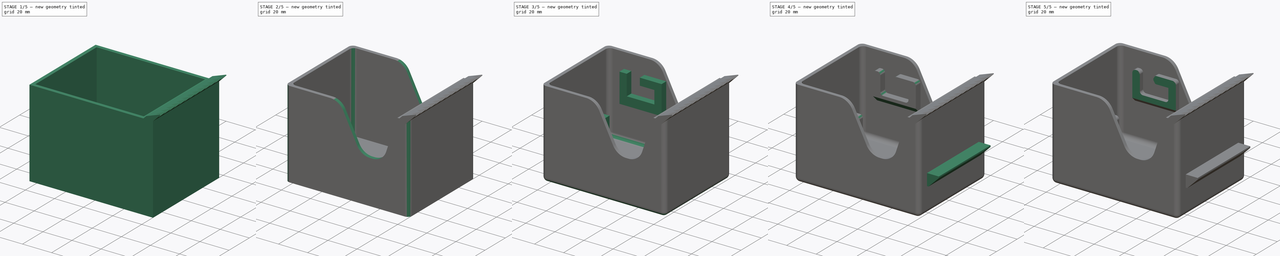
[diagram: build sequence overview — one tinted view per stage of 5, left to right]
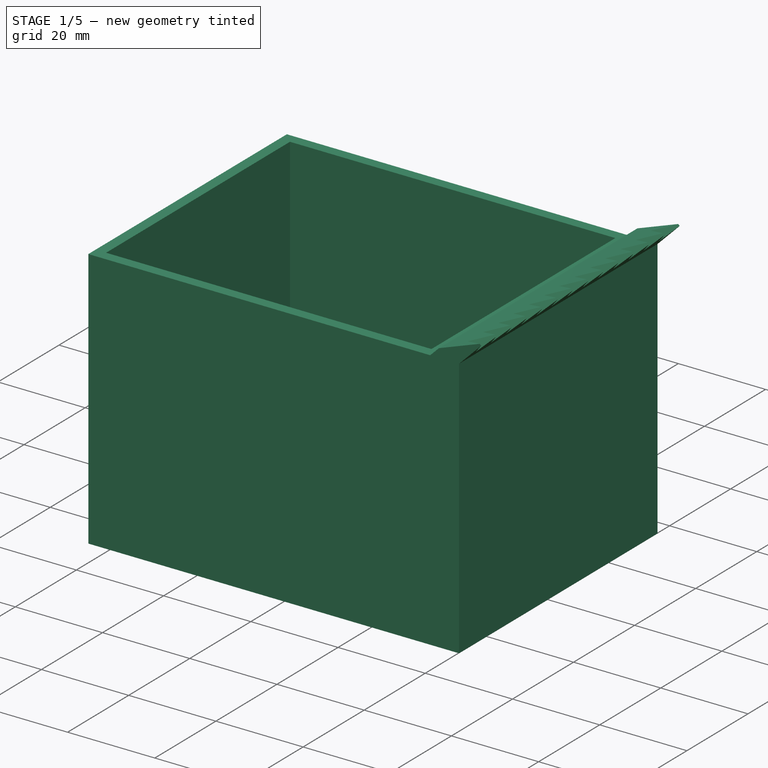
[diagram: stage 1 of 5 — iso view after this stage's code; geometry added in this stage tinted green]
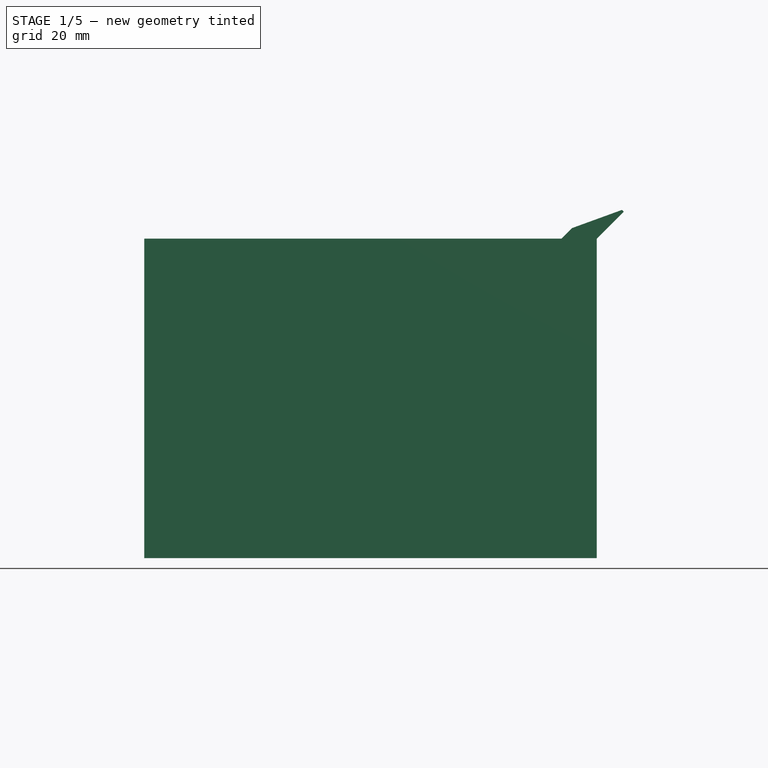
[diagram: stage 1 of 5 — front view after this stage's code; geometry added in this stage tinted green]
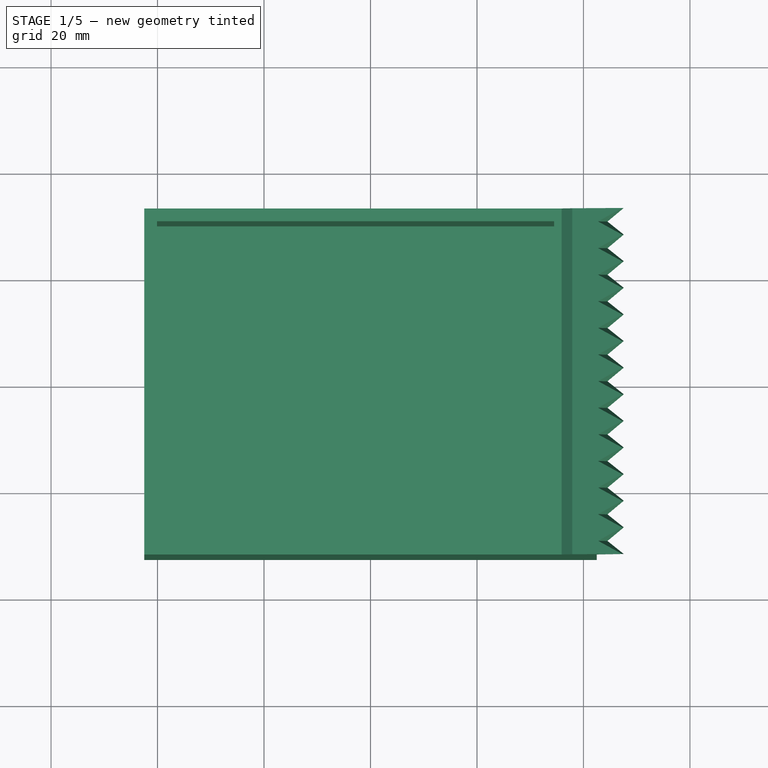
[diagram: stage 1 of 5 — top view after this stage's code; geometry added in this stage tinted green]
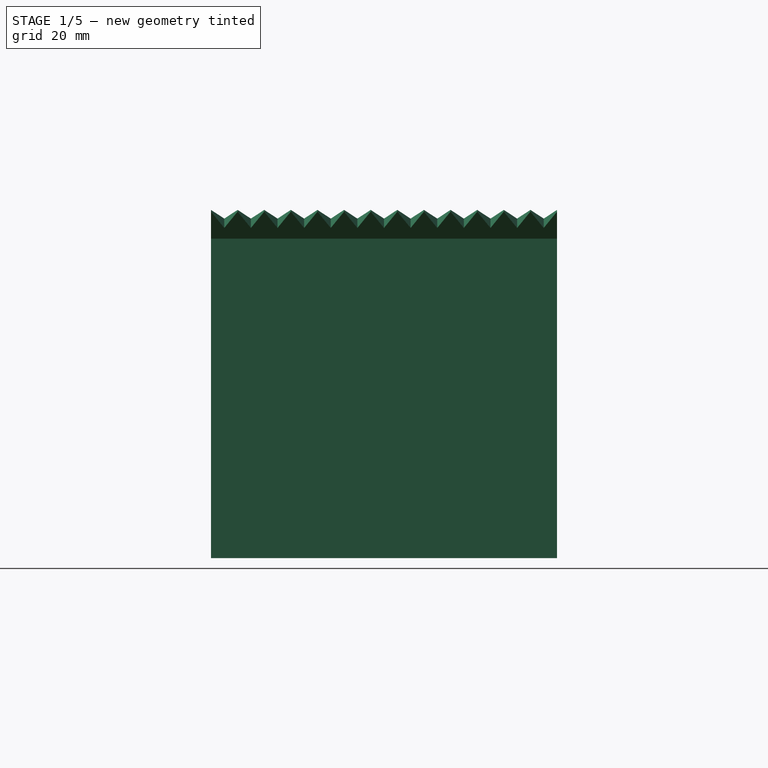
[diagram: stage 1 of 5 — right view after this stage's code; geometry added in this stage tinted green]
FCSTD DOCUMENT  (FreeCAD 0.16R6557 (Git))
Label: DispenserBody
License: CreativeCommons Attribution-ShareAlike
LicenseURL: http://creativecommons.org/licenses/by-sa/4.0/
objects: Sketcher::SketchObject×10, PartDesign::Pad×7, PartDesign::Fillet×4, PartDesign::Pocket×3, PartDesign::Chamfer×3, Part::Feature×2, Part::MultiFuse×1, Part::Cut×1, App::DocumentObjectGroup×1
note: 41 computed .brp shape members not serialized (recipe doc carries the construction recipe); baked Part::Feature solids carry a one-line shape summary decoded from their .brp

FEATURE [Sketcher::SketchObject] Sketch  label="BodyBaseSketch"
  sketch-geometry (4):
    g0: LineSegment StartX=-42.5 StartY=32.5 StartZ=0 EndX=42.5 EndY=32.5 EndZ=0
    g1: LineSegment StartX=42.5 StartY=32.5 StartZ=0 EndX=42.5 EndY=-32.5 EndZ=0
    g2: LineSegment StartX=42.5 StartY=-32.5 StartZ=0 EndX=-42.5 EndY=-32.5 EndZ=0
    g3: LineSegment StartX=-42.5 StartY=-32.5 StartZ=0 EndX=-42.5 EndY=32.5 EndZ=0
  constraints (12):
    c: Coincident(g0,g1)
    c: Coincident(g1,g2)
    c: Coincident(g2,g3)
    c: Coincident(g3,g0)
    c: Horizontal(g0)
    c: Horizontal(g2)
    c: Vertical(g1)
    c: Vertical(g3)
    c: Symmetric(g0,g0,g-2)
    c: Symmetric(g0,g2,g-1)
    c: DistanceX(g0) = 85
    c: DistanceY(g3) = 65
FEATURE [PartDesign::Pad] Pad  label="85*65*60Body"
  Length = 60
  Length2 = 100
  Sketch = -> Sketch
  Type = 0
FEATURE [Sketcher::SketchObject] Sketch001  label="InternalHoleSketch"
  ExternalGeometry = -> [Pad]
  Placement = pos=(0,0,60) rot=(0,0,1;0rad)
  Support = -> Pad [Face6]
  sketch-geometry (4):
    g0: LineSegment StartX=34.5 StartY=30.1 StartZ=0 EndX=-40.1 EndY=30.1 EndZ=0
    g1: LineSegment StartX=-40.1 StartY=30.1 StartZ=0 EndX=-40.1 EndY=-30.1 EndZ=0
    g2: LineSegment StartX=-40.1 StartY=-30.1 StartZ=0 EndX=34.5 EndY=-30.1 EndZ=0
    g3: LineSegment StartX=34.5 StartY=-30.1 StartZ=0 EndX=34.5 EndY=30.1 EndZ=0
  constraints (12):
    c: Coincident(g0,g1)
    c: Coincident(g1,g2)
    c: Coincident(g2,g3)
    c: Coincident(g3,g0)
    c: Horizontal(g0)
    c: Horizontal(g2)
    c: Vertical(g1)
    c: Vertical(g3)
    c: Symmetric(g0,g2,g-1)
    c: DistanceX(g-3,g0) = 2.4
    c: DistanceY(g1,g-4) = -2.4
    c: DistanceX(g0,g-3) = 8
FEATURE [PartDesign::Pocket] Pocket  label="BodyPocket"
  Length = 55
  Sketch = -> Sketch001
  Type = 0
FEATURE [Sketcher::SketchObject] Sketch003  label="TeethSketch"
  Placement = pos=(0,32.5,0) rot=(1,0,0;1.5708rad)
  sketch-geometry (4):
    g0: LineSegment StartX=48.2826 StartY=65.7826 StartZ=0 EndX=42.5 EndY=60 EndZ=0
    g1: LineSegment StartX=48.2826 StartY=65.7826 StartZ=0 EndX=37.89 EndY=62 EndZ=0
    g2: LineSegment StartX=35.89 StartY=60 StartZ=0 EndX=37.89 EndY=62 EndZ=0
    g3: LineSegment StartX=35.89 StartY=60 StartZ=0 EndX=42.5 EndY=60 EndZ=0
  constraints (12):
    c: Coincident(g1,g0)
    c: Coincident(g2,g1)
    c: Angle(g1,g0) = 0.436332
    c: DistanceX(g-1,g2) = 35.89
    c: DistanceY(g-1,g2) = 60
    c: Angle(g2,g1) = 2.70526
    c: Horizontal(g3)
    c: Coincident(g3,g0)
    c: Coincident(g2,g3)
    c: DistanceX(g3) = 6.61
    c: Angle(g0,g3) = 2.35619
    c: DistanceY(g1,g2) = -2
FEATURE [PartDesign::Pad] Pad001  label="TeethBasePad-NoPockets"
  Length = 65
  Length2 = 100
  Placement = pos=(0,32.5,0) rot=(1,0,0;1.5708rad)
  Sketch = -> Sketch003
  Type = 0
FEATURE [Sketcher::SketchObject] Sketch004  label="TeethPocketSketch"
  ExternalGeometry = -> [Pad001]
  Placement = pos=(-12.055,32.5,12.055) rot=(-0.382683,0,0.92388;3.14159rad)
  Support = -> Pad001 [Face3]
  sketch-geometry (29):
    g0: LineSegment StartX=-79.6563 StartY=55 StartZ=0 EndX=-75.3261 EndY=52.5 EndZ=0
    g1: LineSegment StartX=-75.3261 StartY=52.5 StartZ=0 EndX=-79.6563 EndY=50 EndZ=0
    g2: LineSegment StartX=-79.6563 StartY=50 StartZ=0 EndX=-75.3261 EndY=47.5 EndZ=0
    g3: LineSegment StartX=-75.3261 StartY=47.5 StartZ=0 EndX=-79.6563 EndY=45 EndZ=0
    g4: LineSegment StartX=-79.6563 StartY=45 StartZ=0 EndX=-75.3261 EndY=42.5 EndZ=0
    g5: LineSegment StartX=-75.3261 StartY=42.5 StartZ=0 EndX=-79.6563 EndY=40 EndZ=0
    g6: LineSegment StartX=-79.6563 StartY=40 StartZ=0 EndX=-75.3261 EndY=37.5 EndZ=0
    g7: LineSegment StartX=-75.3261 StartY=37.5 StartZ=0 EndX=-79.6563 EndY=35 EndZ=0
    g8: LineSegment StartX=-79.6563 StartY=35 StartZ=0 EndX=-75.3261 EndY=32.5 EndZ=0
    g9: LineSegment StartX=-75.3261 StartY=32.5 StartZ=0 EndX=-79.6563 EndY=30 EndZ=0
    g10: LineSegment StartX=-79.6563 StartY=30 StartZ=0 EndX=-75.3261 EndY=27.5 EndZ=0
    g11: LineSegment StartX=-75.3261 StartY=27.5 StartZ=0 EndX=-79.6563 EndY=25 EndZ=0
    g12: LineSegment StartX=-79.6563 StartY=25 StartZ=0 EndX=-75.3261 EndY=22.5 EndZ=0
    g13: LineSegment StartX=-75.3261 StartY=22.5 StartZ=0 EndX=-79.6563 EndY=20 EndZ=0
    g14: LineSegment StartX=-79.6563 StartY=20 StartZ=0 EndX=-75.3261 EndY=17.5 EndZ=0
    g15: LineSegment StartX=-75.3261 StartY=17.5 StartZ=0 EndX=-79.6563 EndY=15 EndZ=0
    g16: LineSegment StartX=-79.6563 StartY=15 StartZ=0 EndX=-75.3261 EndY=12.5 EndZ=0
    g17: LineSegment StartX=-75.3261 StartY=12.5 StartZ=0 EndX=-79.6563 EndY=10 EndZ=0
    g18: LineSegment StartX=-79.6563 StartY=10 StartZ=0 EndX=-75.3261 EndY=7.5 EndZ=0
    g19: LineSegment StartX=-75.3261 StartY=7.5 StartZ=0 EndX=-79.6563 EndY=5 EndZ=0
    g20: LineSegment StartX=-79.6563 StartY=5 StartZ=0 EndX=-75.3261 EndY=2.5 EndZ=0
    g21: LineSegment StartX=-75.3261 StartY=2.5 StartZ=0 EndX=-79.6563 EndY=0 EndZ=0
    g22: LineSegment StartX=-79.6563 StartY=55 StartZ=0 EndX=-75.3261 EndY=57.5 EndZ=0
    g23: LineSegment StartX=-75.3261 StartY=57.5 StartZ=0 EndX=-79.6563 EndY=60 EndZ=0
    g24: LineSegment StartX=-79.6563 StartY=60 StartZ=0 EndX=-75.3261 EndY=62.5 EndZ=0
    g25: LineSegment StartX=-75.3261 StartY=62.5 StartZ=0 EndX=-79.6563 EndY=65 EndZ=0
    g26: LineSegment StartX=-80.6563 StartY=0 StartZ=0 EndX=-79.6563 EndY=0 EndZ=0
    g27: LineSegment StartX=-80.6563 StartY=0 StartZ=0 EndX=-80.6563 EndY=65 EndZ=0
    g28: LineSegment StartX=-80.6563 StartY=65 StartZ=0 EndX=-79.6563 EndY=65 EndZ=0
  constraints (87):
    c: Coincident(g0,g1)
    c: Coincident(g2,g1)
    c: Coincident(g3,g4)
    c: Coincident(g4,g5)
    c: Coincident(g5,g6)
    c: Coincident(g7,g8)
    c: Coincident(g9,g10)
    c: Coincident(g10,g11)
    c: Coincident(g13,g12)
    c: Coincident(g21,g20)
    c: Coincident(g19,g20)
    c: Coincident(g18,g19)
    c: Coincident(g18,g17)
    c: Coincident(g16,g17)
    c: Coincident(g16,g15)
    c: Coincident(g11,g12)
    c: DistanceY(g1,g0) = 5
    c: DistanceY(g1,g3) = -5
    c: DistanceY(g3,g5) = -5
    c: DistanceY(g5,g7) = -5
    c: DistanceY(g9,g7) = 5
    c: DistanceY(g9,g11) = -5
    c: DistanceY(g11,g13) = -5
    c: DistanceY(g13,g15) = -5
    c: DistanceY(g19,g17) = 5
    c: DistanceY(g17,g15) = 5
    c: DistanceY(g19,g21) = -5
    c: Coincident(g23,g22)
    c: Coincident(g24,g23)
    c: Coincident(g25,g24)
    c: Coincident(g22,g0)
    c: DistanceY(g0,g23) = 5
    c: Angle(g25,g24) = 1.0472
    c: Angle(g23,g24) = 1.0472
    c: DistanceY(g23,g25) = 5
    c: Angle(g0,g22) = 1.0472
    c: Equal(g25,g24)
    c: Equal(g24,g23)
    c: Equal(g23,g22)
    c: Equal(g22,g0)
    c: Equal(g0,g1)
    c: Equal(g1,g2)
    c: Equal(g2,g3)
    c: Equal(g3,g4)
    c: Equal(g4,g5)
    c: Equal(g5,g6)
    c: Equal(g6,g8)
    c: Equal(g8,g7)
    c: Equal(g7,g9)
    c: Equal(g9,g10)
    c: Equal(g10,g13)
    c: Equal(g13,g14)
    c: Equal(g14,g12)
    c: Equal(g12,g11)
    c: Equal(g14,g15)
    c: Equal(g15,g16)
    c: Equal(g16,g17)
    c: Equal(g17,g18)
    c: Equal(g18,g19)
    c: Equal(g19,g20)
    c: Equal(g20,g21)
    c: Angle(g2,g1) = 1.0472
    c: Coincident(g3,g2)
    c: Angle(g4,g3) = 1.0472
    c: Angle(g6,g5) = 1.0472
    c: Coincident(g7,g6)
    c: Angle(g8,g7) = 1.0472
    c: Coincident(g9,g8)
    c: Angle(g10,g9) = 1.0472
    c: Angle(g12,g11) = 1.0472
    c: Coincident(g13,g14)
    c: Angle(g14,g13) = 1.0472
    c: Coincident(g14,g15)
    c: Angle(g18,g17) = 1.0472
    c: Angle(g16,g15) = 1.0472
    c: Angle(g20,g19) = 1.0472
    c: Horizontal(g28)
    c: Coincident(g28,g27)
    c: Vertical(g27)
    c: Horizontal(g26)
    c: Equal(g28,g26)
    c: DistanceX(g28) = 1
    c: DistanceY(g27) = 65
    c: Coincident(g28,g25)
    c: Coincident(g27,g26)
    c: Coincident(g26,g21)
    c: Coincident(g-3,g26)
FEATURE [PartDesign::Pocket] Pocket002  label="TeethPocket"
  Length = 5
  Placement = pos=(0,32.5,0) rot=(1,0,0;1.5708rad)
  Sketch = -> Sketch004
  Type = 0
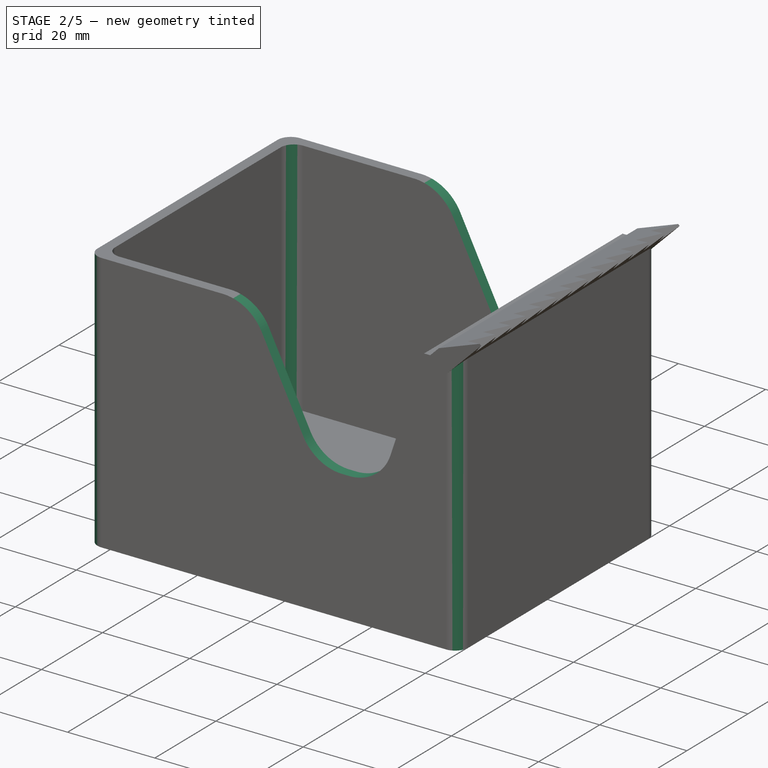
[diagram: stage 2 of 5 — iso view after this stage's code; geometry added in this stage tinted green]
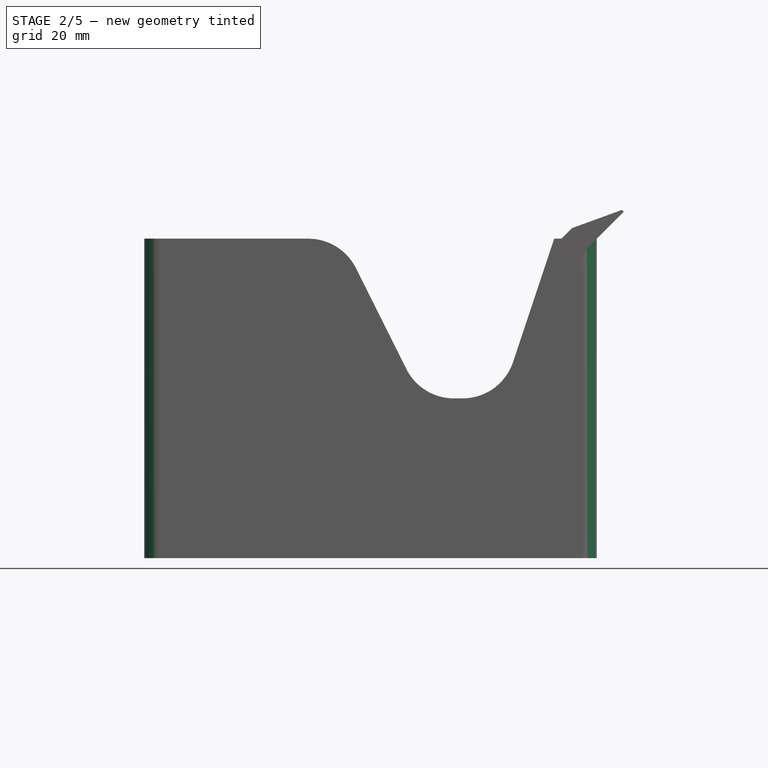
[diagram: stage 2 of 5 — front view after this stage's code; geometry added in this stage tinted green]
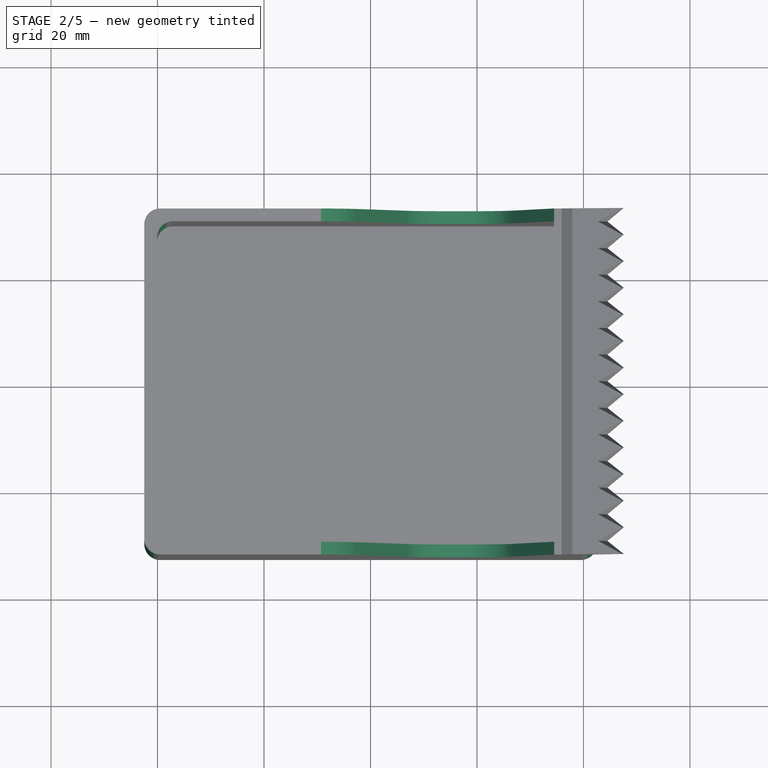
[diagram: stage 2 of 5 — top view after this stage's code; geometry added in this stage tinted green]
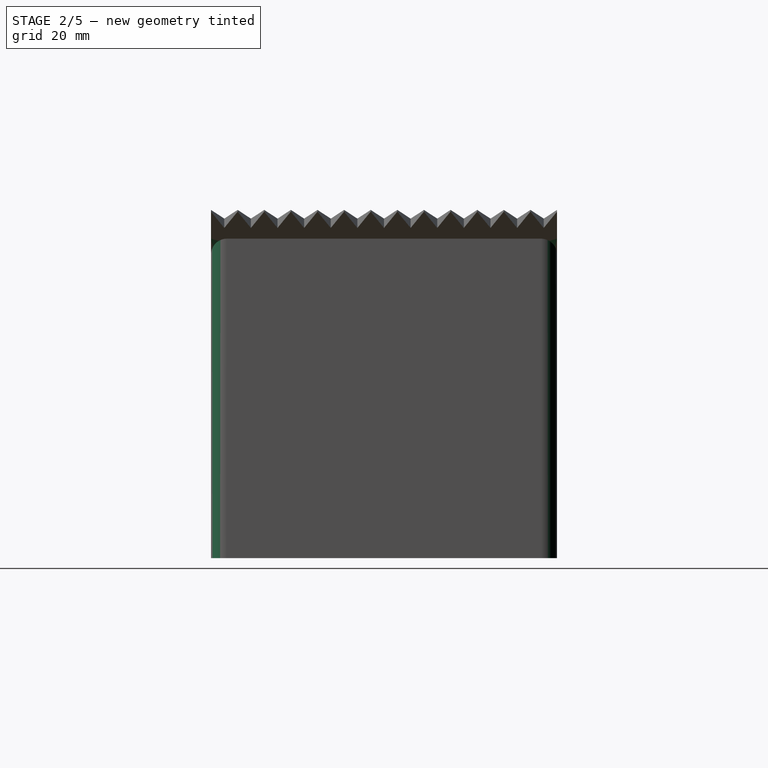
[diagram: stage 2 of 5 — right view after this stage's code; geometry added in this stage tinted green]
FEATURE [Sketcher::SketchObject] Sketch002  label="FingerHolesSketch"
  ExternalGeometry = -> [Pocket]
  Placement = pos=(0,-32.5,0) rot=(1,0,0;1.5708rad)
  Support = -> Pocket [Face6]
  sketch-geometry (4):
    g0: LineSegment StartX=-5.5 StartY=60 StartZ=0 EndX=9.5 EndY=30 EndZ=0
    g1: LineSegment StartX=9.5 StartY=30 StartZ=0 EndX=24.5 EndY=30 EndZ=0
    g2: LineSegment StartX=24.5 StartY=30 StartZ=0 EndX=34.5 EndY=60 EndZ=0
    g3: LineSegment StartX=34.5 StartY=60 StartZ=0 EndX=-5.5 EndY=60 EndZ=0
  constraints (12):
    c: Horizontal(g1)
    c: DistanceX(g2,g-3) = 8
    c: PointOnObject(g2,g-3)
    c: Horizontal(g3)
    c: Coincident(g3,g2)
    c: Coincident(g3,g0)
    c: DistanceX(g3) = -40
    c: Coincident(g1,g0)
    c: Coincident(g2,g1)
    c: DistanceX(g1) = 15
    c: DistanceX(g1,g-3) = 18
    c: DistanceY(g1,g-3) = 30
FEATURE [PartDesign::Pocket] Pocket001  label="FingerPocket"
  Length = 5
  Sketch = -> Sketch002
  Type = 1
FEATURE [Part::MultiFuse] Fusion  label="BodyWithTeeth"
  Shapes = -> [Pocket001,Pocket002]
FEATURE [PartDesign::Fillet] Fillet  label="FingerFillet"
  Base = -> Fusion [Edge21,Edge28,Edge9,Edge25,Edge61,Edge65]
  Radius = 10
FEATURE [PartDesign::Fillet] Fillet001  label="3mmBodyFillet"
  Base = -> Fillet [Edge59,Edge58,Edge27,Edge23,Edge40,Edge10]
  Radius = 3
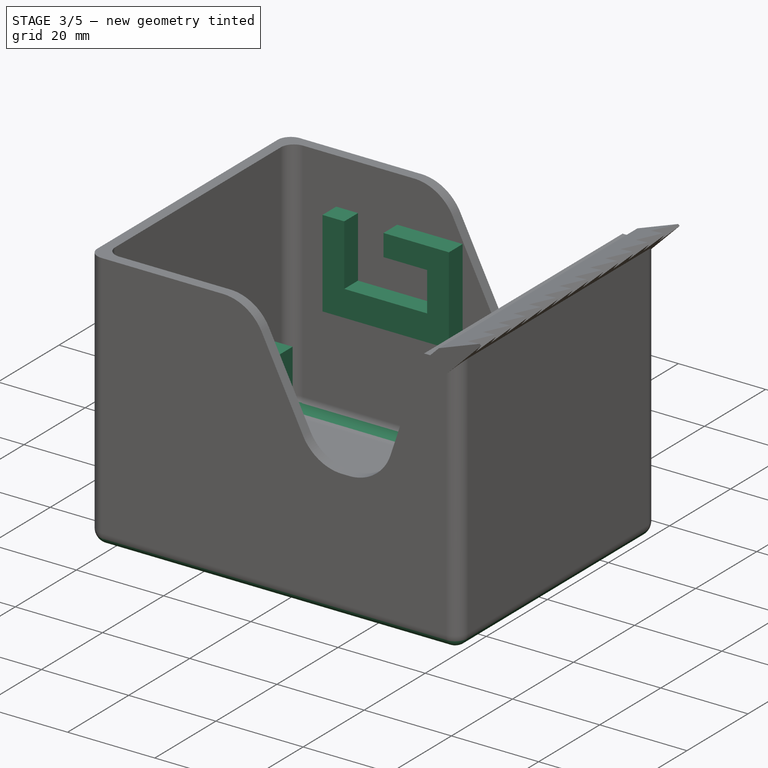
[diagram: stage 3 of 5 — iso view after this stage's code; geometry added in this stage tinted green]
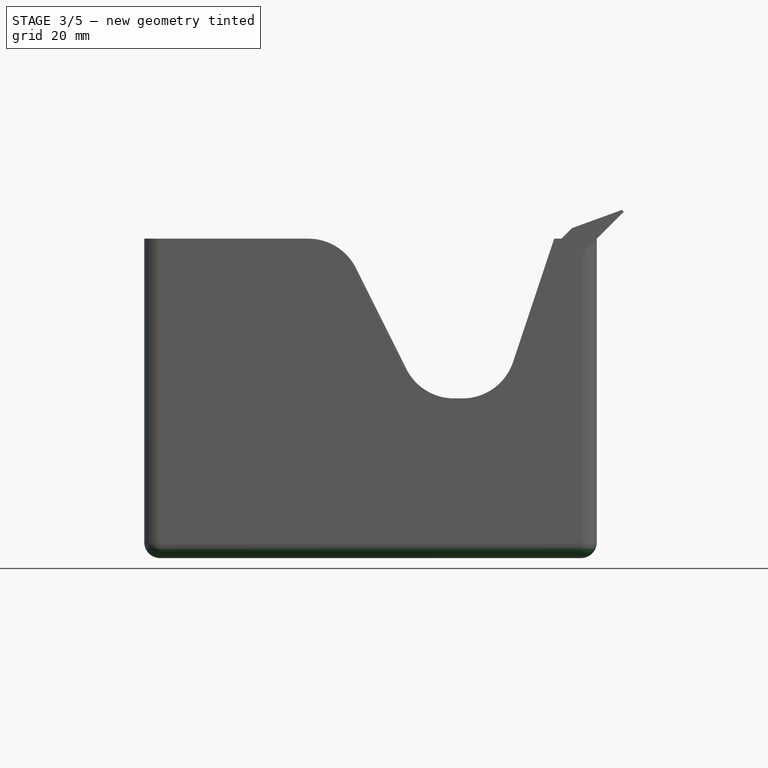
[diagram: stage 3 of 5 — front view after this stage's code; geometry added in this stage tinted green]
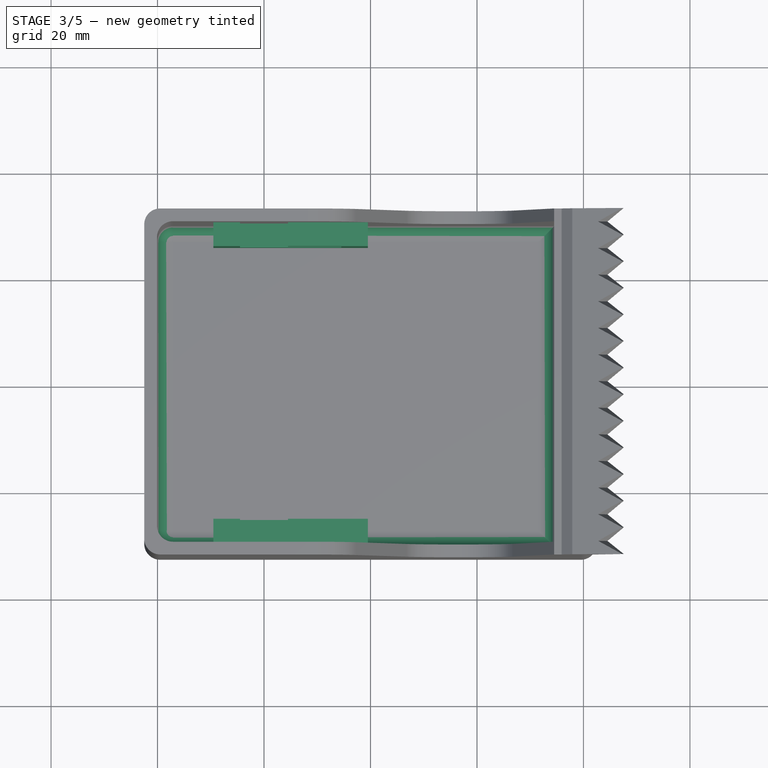
[diagram: stage 3 of 5 — top view after this stage's code; geometry added in this stage tinted green]
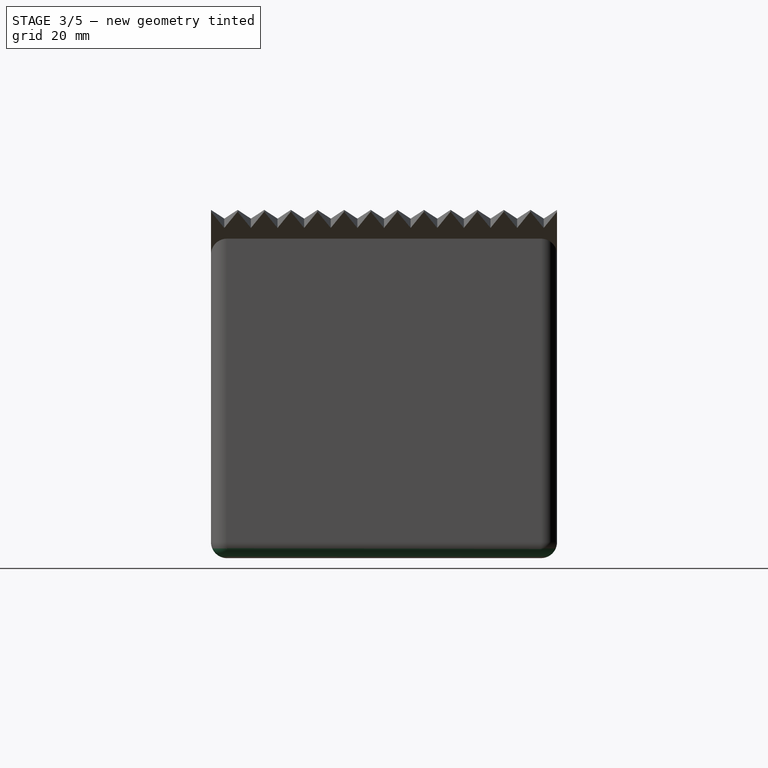
[diagram: stage 3 of 5 — right view after this stage's code; geometry added in this stage tinted green]
FEATURE [PartDesign::Fillet] Fillet002  label="3mmBaseFillet"
  Base = -> Fillet001 [Edge55,Edge62,Edge87,Edge64,Edge88,Edge66,Edge89,Edge69,Edge1,Edge11,Edge12,Edge13,Edge14,Edge15]
  Radius = 3
FEATURE [Sketcher::SketchObject] Sketch005  label="InsertAxis1Sketch"
  Placement = pos=(0,30.1,0) rot=(1,0,0;1.5708rad)
  Support = -> Fillet002 [Face1]
  sketch-geometry (10):
    g0: LineSegment StartX=-29.5 StartY=49.4 StartZ=0 EndX=-24.5 EndY=49.4 EndZ=0
    g1: LineSegment StartX=-24.5 StartY=49.4 StartZ=0 EndX=-24.5 EndY=35.4 EndZ=0
    g2: LineSegment StartX=-24.5 StartY=35.4 StartZ=0 EndX=-5.5 EndY=35.4 EndZ=0
    g3: LineSegment StartX=-5.5 StartY=35.4 StartZ=0 EndX=-5.5 EndY=44.4 EndZ=0
    g4: LineSegment StartX=-5.5 StartY=44.4 StartZ=0 EndX=-15.5 EndY=44.4 EndZ=0
    g5: LineSegment StartX=-15.5 StartY=44.4 StartZ=0 EndX=-15.5 EndY=49.4 EndZ=0
    g6: LineSegment StartX=-15.5 StartY=49.4 StartZ=0 EndX=-0.5 EndY=49.4 EndZ=0
    g7: LineSegment StartX=-0.5 StartY=49.4 StartZ=0 EndX=-0.5 EndY=29.4 EndZ=0
    g8: LineSegment StartX=-0.5 StartY=29.4 StartZ=0 EndX=-29.5 EndY=29.4 EndZ=0
    g9: LineSegment StartX=-29.5 StartY=49.4 StartZ=0 EndX=-29.5 EndY=29.4 EndZ=0
  constraints (30):
    c: Horizontal(g0)
    c: Vertical(g1)
    c: Horizontal(g2)
    c: Coincident(g3,g2)
    c: Vertical(g3)
    c: Horizontal(g6)
    c: Vertical(g9)
    c: Coincident(g0,g9)
    c: Vertical(g5)
    c: Vertical(g7)
    c: Coincident(g5,g6)
    c: Coincident(g6,g7)
    c: Coincident(g4,g3)
    c: Horizontal(g4)
    c: Coincident(g4,g5)
    c: Coincident(g8,g7)
    c: Horizontal(g8)
    c: Coincident(g9,g8)
    c: Coincident(g2,g1)
    c: Coincident(g0,g1)
    c: DistanceX(g0,g5) = 9
    c: DistanceY(g3,g2) = -9
    c: DistanceX(g-1,g3) = -5.5
    c: DistanceX(g4) = -10
    c: DistanceY(g-1,g1) = 35.4
    c: DistanceY(g5,g4) = -5
    c: DistanceX(g3,g6) = 5
    c: DistanceY(g1,g7) = -6
    c: DistanceX(g0) = 5
    c: DistanceY(g1) = -14
FEATURE [PartDesign::Pad] Pad002  label="InsertSupport1Pad"
  Length = 4.5
  Length2 = 100
  Sketch = -> Sketch005
  Type = 0
FEATURE [Sketcher::SketchObject] Sketch006  label="InsertAxis2Sketch"
  Placement = pos=(0,-30.1,0) rot=(0,0.707107,0.707107;3.14159rad)
  Support = -> Pad002 [Face34]
  sketch-geometry (10):
    g0: LineSegment StartX=24.5 StartY=49.4 StartZ=0 EndX=24.5 EndY=35.4 EndZ=0
    g1: LineSegment StartX=24.5 StartY=35.4 StartZ=0 EndX=5.5 EndY=35.4 EndZ=0
    g2: LineSegment StartX=5.5 StartY=35.4 StartZ=0 EndX=5.5 EndY=44.4 EndZ=0
    g3: LineSegment StartX=5.5 StartY=44.4 StartZ=0 EndX=15.5 EndY=44.4 EndZ=0
    g4: LineSegment StartX=15.5 StartY=44.4 StartZ=0 EndX=15.5 EndY=49.4 EndZ=0
    g5: LineSegment StartX=15.5 StartY=49.4 StartZ=0 EndX=0.5 EndY=49.4 EndZ=0
    g6: LineSegment StartX=0.5 StartY=49.4 StartZ=0 EndX=0.5 EndY=29.4 EndZ=0
    g7: LineSegment StartX=0.5 StartY=29.4 StartZ=0 EndX=29.5 EndY=29.4 EndZ=0
    g8: LineSegment StartX=29.5 StartY=29.4 StartZ=0 EndX=29.5 EndY=49.4 EndZ=0
    g9: LineSegment StartX=29.5 StartY=49.4 StartZ=0 EndX=24.5 EndY=49.4 EndZ=0
  constraints (30):
    c: Vertical(g0)
    c: Horizontal(g1)
    c: Horizontal(g3)
    c: Vertical(g4)
    c: Horizontal(g5)
    c: Horizontal(g7)
    c: Coincident(g5,g4)
    c: Coincident(g9,g0)
    c: Horizontal(g9)
    c: Coincident(g9,g8)
    c: Vertical(g8)
    c: Coincident(g0,g1)
    c: Coincident(g1,g2)
    c: Vertical(g2)
    c: Coincident(g3,g4)
    c: Coincident(g5,g6)
    c: Vertical(g6)
    c: Coincident(g6,g7)
    c: Coincident(g7,g8)
    c: DistanceY(g2) = 9
    c: DistanceX(g3,g0) = 9
    c: DistanceY(g4) = 5
    c: DistanceX(g5,g2) = 5
    c: DistanceY(g1,g6) = -6
    c: DistanceX(g0,g8) = 5
    c: DistanceY(g0) = -14
    c: DistanceX(g3) = 10
    c: DistanceY(g-1,g0) = 35.4
    c: DistanceX(g-1,g1) = 5.5
    c: Coincident(g2,g3)
FEATURE [PartDesign::Pad] Pad003  label="InsertSupportsPad"
  Length = 4.5
  Length2 = 100
  Sketch = -> Sketch006
  Type = 0
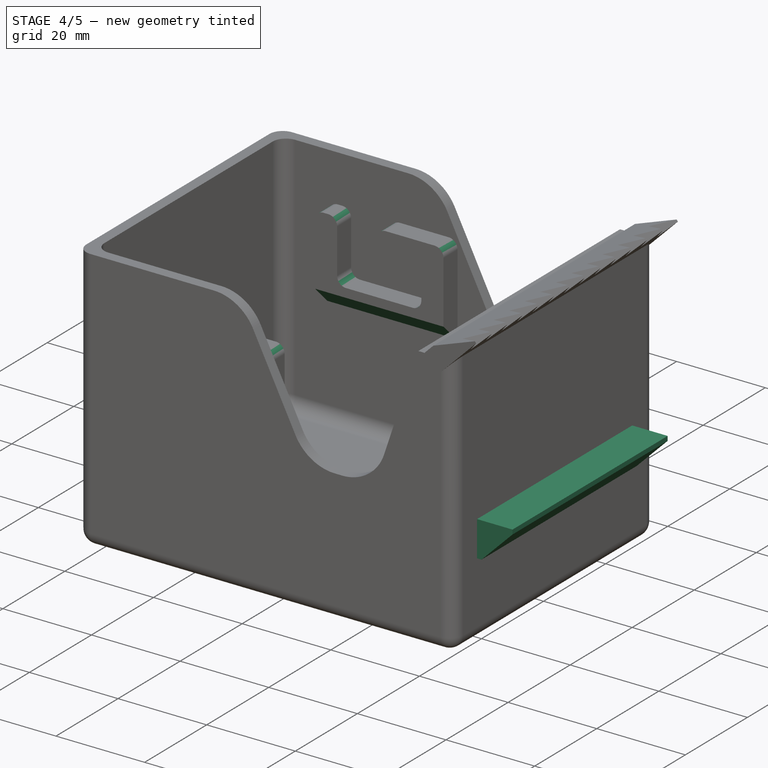
[diagram: stage 4 of 5 — iso view after this stage's code; geometry added in this stage tinted green]
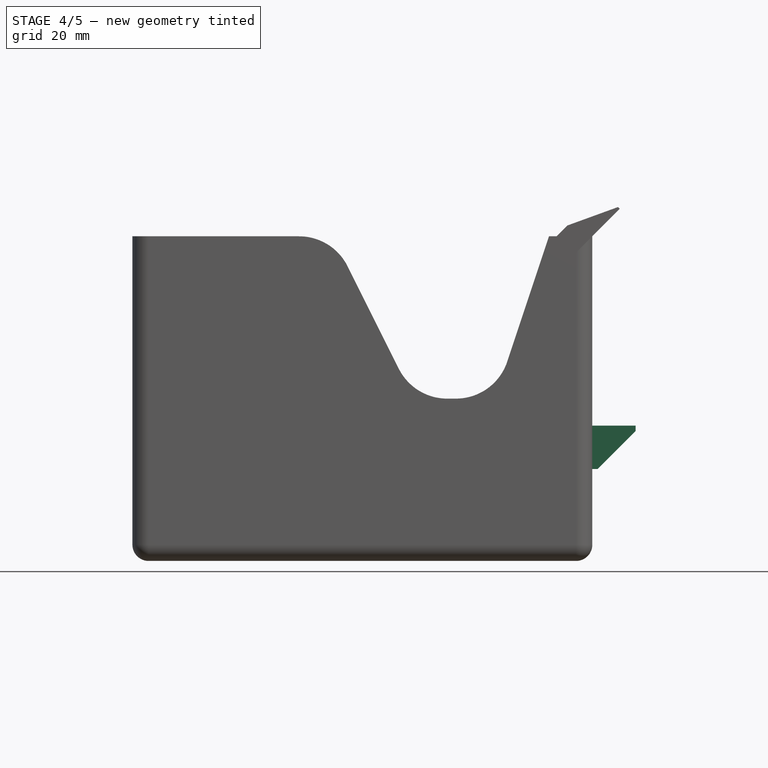
[diagram: stage 4 of 5 — front view after this stage's code; geometry added in this stage tinted green]
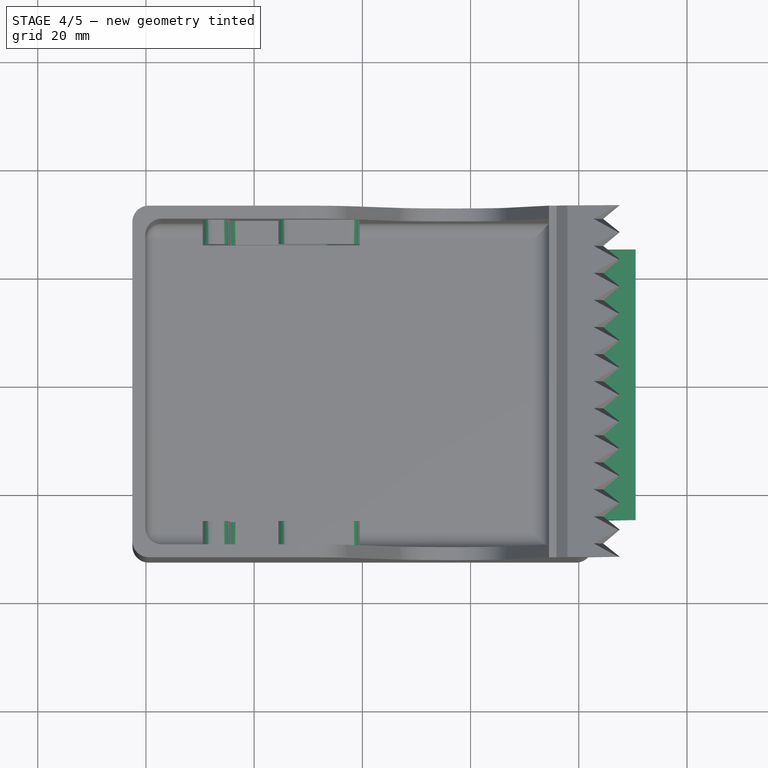
[diagram: stage 4 of 5 — top view after this stage's code; geometry added in this stage tinted green]
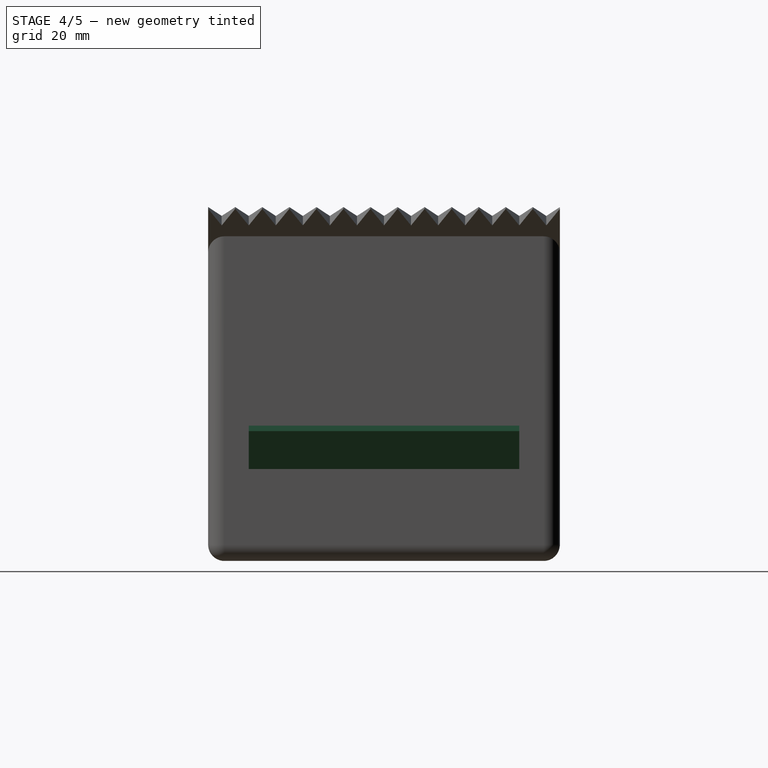
[diagram: stage 4 of 5 — right view after this stage's code; geometry added in this stage tinted green]
FEATURE [PartDesign::Chamfer] Chamfer  label="EasyPrintChamfer"
  Base = -> Pad003 [Edge219,Edge9]
  Size = 4
FEATURE [PartDesign::Fillet] Fillet003002  label="EasyFitFillet001"
  Base = -> Chamfer [Edge19,Edge25,Edge29,Edge17,Edge12,Edge22,Edge30,Edge226,Edge214,Edge217,Edge216,Edge227,Edge233,Edge229]
  Radius = 2
FEATURE [Sketcher::SketchObject] Sketch010  label="FrontLimitSketch"
  Placement = pos=(42.5,0,0) rot=(0.57735,0.57735,0.57735;2.0944rad)
  Support = -> Fillet003002 [Face83]
  sketch-geometry (4):
    g0: LineSegment StartX=-25 StartY=25 StartZ=0 EndX=25 EndY=25 EndZ=0
    g1: LineSegment StartX=25 StartY=25 StartZ=0 EndX=25 EndY=17 EndZ=0
    g2: LineSegment StartX=25 StartY=17 StartZ=0 EndX=-25 EndY=17 EndZ=0
    g3: LineSegment StartX=-25 StartY=17 StartZ=0 EndX=-25 EndY=25 EndZ=0
  constraints (12):
    c: Coincident(g0,g1)
    c: Coincident(g1,g2)
    c: Coincident(g2,g3)
    c: Coincident(g3,g0)
    c: Horizontal(g0)
    c: Horizontal(g2)
    c: Vertical(g1)
    c: Vertical(g3)
    c: Symmetric(g0,g0,g-2)
    c: DistanceX(g0) = 50
    c: DistanceY(g1) = -8
    c: DistanceY(g-1,g2) = 17
FEATURE [PartDesign::Pad] Pad007  label="ExtrudedFrontSupport"
  Length = 8
  Length2 = 100
  Sketch = -> Sketch010
  Type = 0
FEATURE [PartDesign::Chamfer] Chamfer002004  label="FrontSupportWithChamfer"
  Base = -> Pad007 [Edge3]
  Size = 7
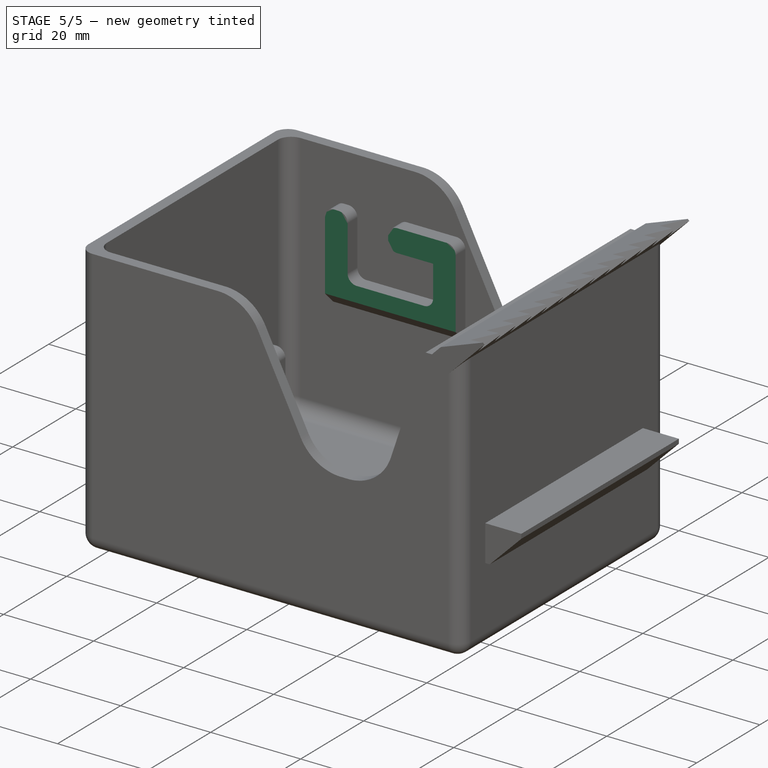
[diagram: stage 5 of 5 — iso view after this stage's code; geometry added in this stage tinted green]
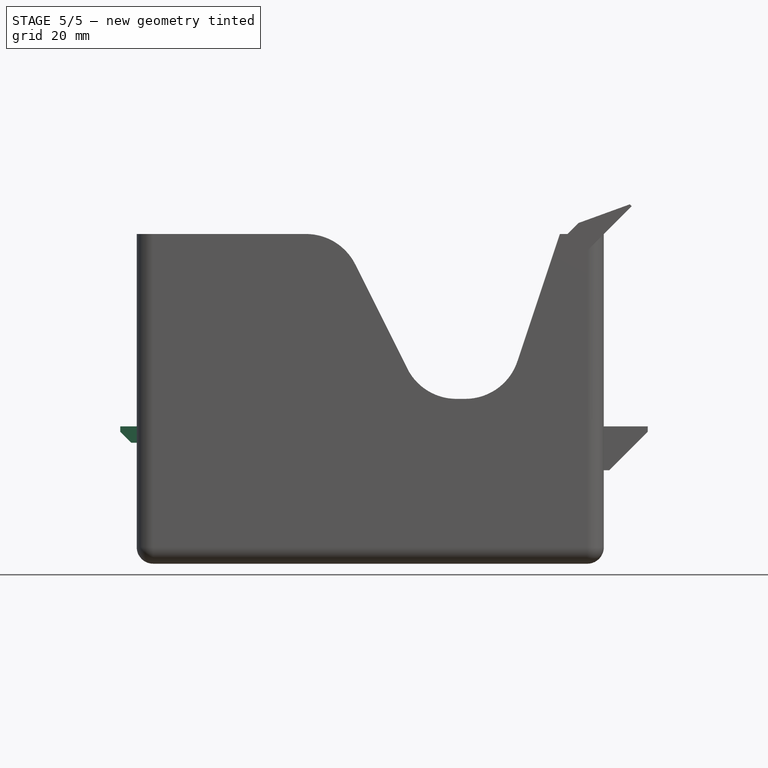
[diagram: stage 5 of 5 — front view after this stage's code; geometry added in this stage tinted green]
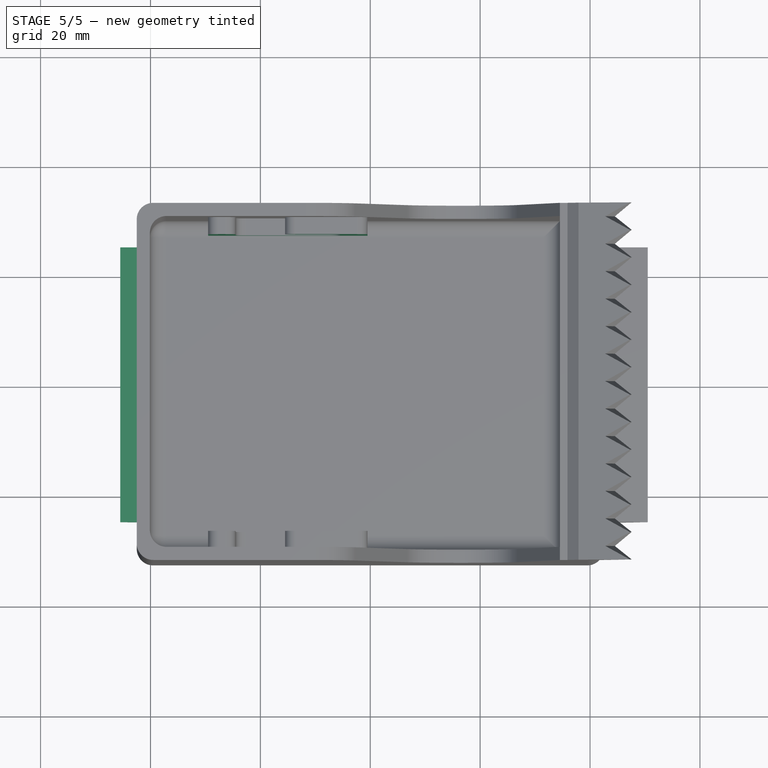
[diagram: stage 5 of 5 — top view after this stage's code; geometry added in this stage tinted green]
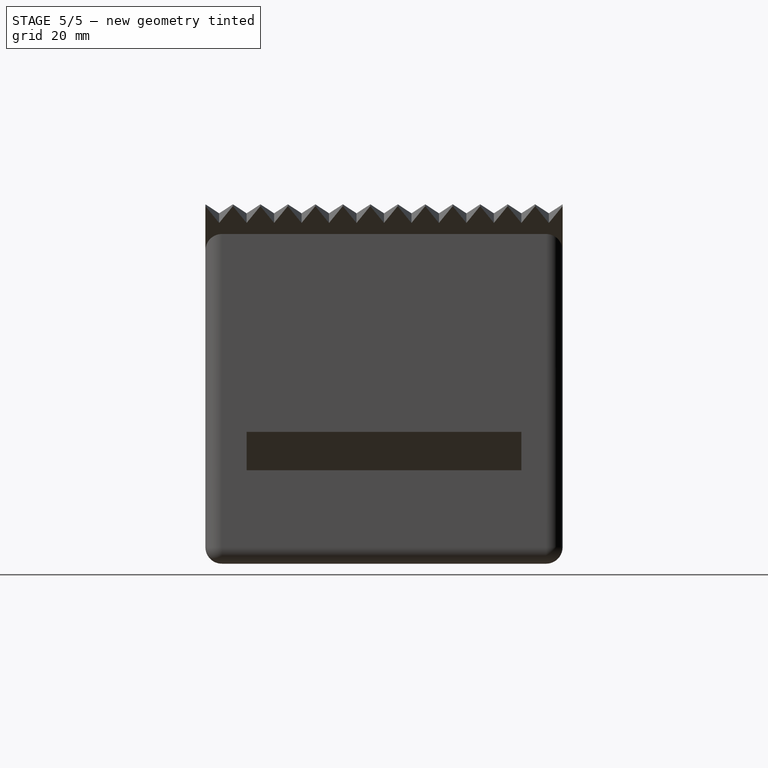
[diagram: stage 5 of 5 — right view after this stage's code; geometry added in this stage tinted green]
FEATURE [Part::Feature] Fillet003001  label="BodyBase"
  shape: bbox 90.08 x 65 x 65.41 mm, 111 faces (baked)
FEATURE [Sketcher::SketchObject] Sketch009
  Placement = pos=(0,0,20) rot=(0,0,1;0rad)
  sketch-geometry (4):
    g0: LineSegment StartX=-34.945 StartY=27 StartZ=0 EndX=1.20805 EndY=27 EndZ=0
    g1: LineSegment StartX=1.20805 StartY=27 StartZ=0 EndX=1.20805 EndY=-27 EndZ=0
    g2: LineSegment StartX=1.20805 StartY=-27 StartZ=0 EndX=-34.945 EndY=-27 EndZ=0
    g3: LineSegment StartX=-34.945 StartY=-27 StartZ=0 EndX=-34.945 EndY=27 EndZ=0
  constraints (10):
    c: Coincident(g0,g1)
    c: Coincident(g1,g2)
    c: Coincident(g2,g3)
    c: Coincident(g3,g0)
    c: Horizontal(g0)
    c: Horizontal(g2)
    c: Vertical(g1)
    c: Vertical(g3)
    c: DistanceY(g1) = -54
    c: Symmetric(g0,g1,g-1)
FEATURE [PartDesign::Pad] Pad006
  Length = 50
  Length2 = 100
  Placement = pos=(0,0,20) rot=(0,0,1;0rad)
  Sketch = -> Sketch009
  Type = 0
FEATURE [Sketcher::SketchObject] Sketch011  label="FrontLimitSketch001"
  Placement = pos=(-42.5,0,0) rot=(0.57735,-0.57735,-0.57735;2.0944rad)
  Support = -> Chamfer002004 [Face65]
  sketch-geometry (4):
    g0: LineSegment StartX=-25 StartY=25 StartZ=0 EndX=25 EndY=25 EndZ=0
    g1: LineSegment StartX=25 StartY=25 StartZ=0 EndX=25 EndY=22 EndZ=0
    g2: LineSegment StartX=25 StartY=22 StartZ=0 EndX=-25 EndY=22 EndZ=0
    g3: LineSegment StartX=-25 StartY=22 StartZ=0 EndX=-25 EndY=25 EndZ=0
  constraints (12):
    c: Coincident(g0,g1)
    c: Coincident(g1,g2)
    c: Coincident(g2,g3)
    c: Coincident(g3,g0)
    c: Horizontal(g0)
    c: Horizontal(g2)
    c: Vertical(g1)
    c: Vertical(g3)
    c: DistanceY(g1) = -3
    c: DistanceX(g0) = 50
    c: DistanceY(g-1,g2) = 22
    c: Symmetric(g0,g0,g-2)
FEATURE [PartDesign::Pad] Pad008  label="LimitForCover-Back"
  Length = 3
  Length2 = 100
  Sketch = -> Sketch011
  Type = 0
FEATURE [PartDesign::Chamfer] Chamfer002005  label="BackSupportChamfer001"
  Base = -> Pad008 [Edge3]
  Size = 2
FEATURE [Part::Cut] Cut  label="DispenserBody"
  Base = -> Chamfer002005
  Tool = -> Pad006
FEATURE [App::DocumentObjectGroup] Group  label="Steps"
  Group = -> [Pad,Pocket,Pad001,Fusion,Fillet,Fillet001,Pad002,Fillet002,Chamfer,Pad003,Fillet003001,Pad007,Chamfer002004,Pad008,Fillet003002,Cut]
FEATURE [Part::Feature] Cut001  label="DispenserBody001"
  shape: bbox 96 x 65 x 65.41 mm, 123 faces (baked)
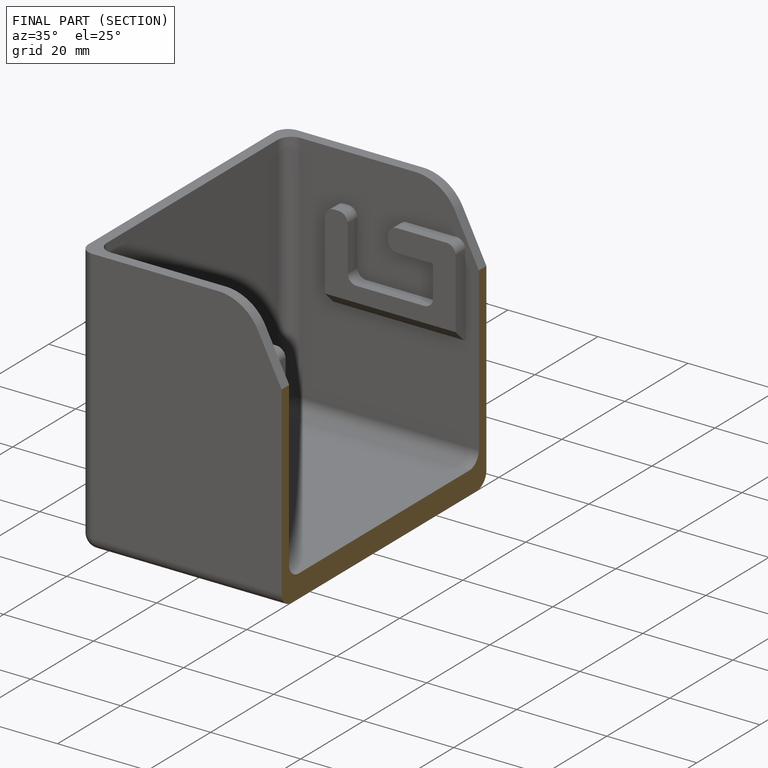
[diagram: finished part — half-section view (interior)]
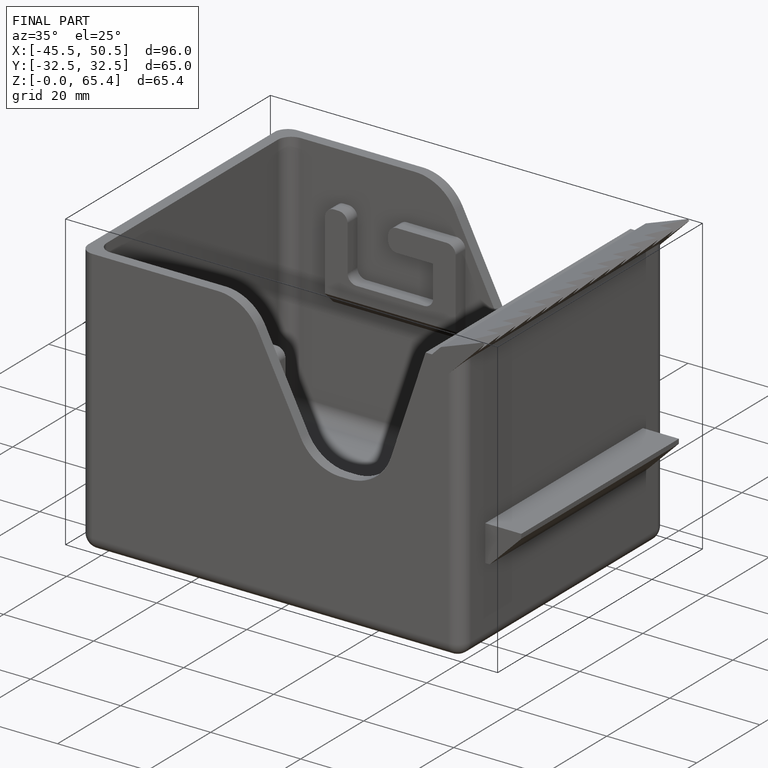
[diagram: finished part — iso view with bounding-box wireframe]
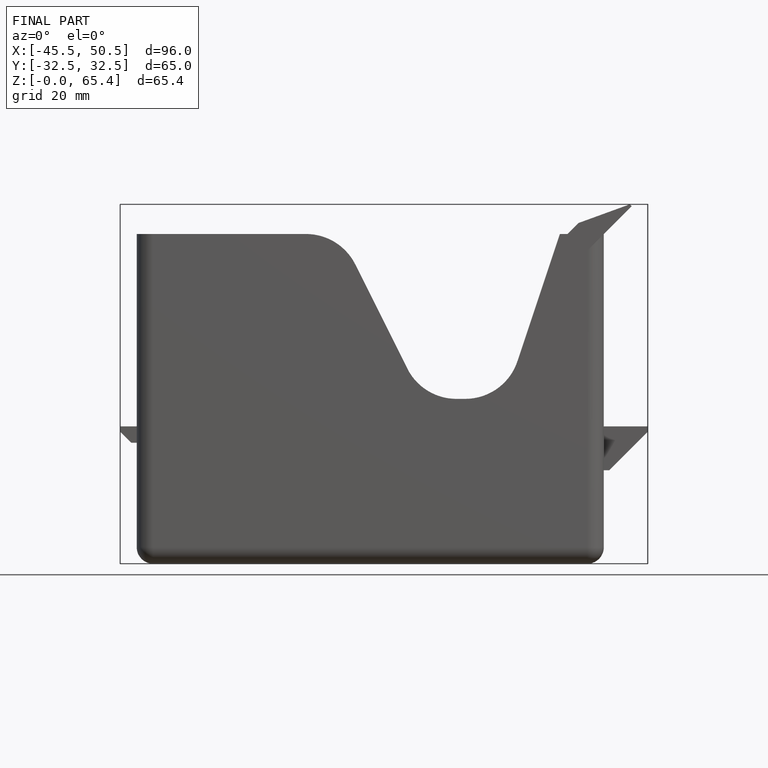
[diagram: finished part — front view with bounding-box wireframe]
